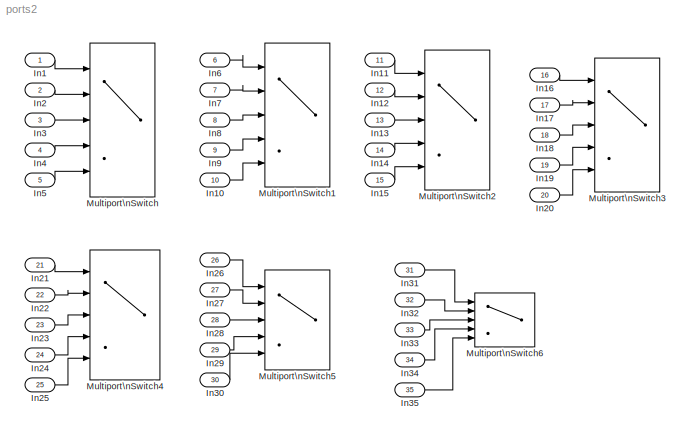
MODEL ports2
KIND model
BLOCK [Inport] In1
  IconDisplay = Port number
  SID = 2
BLOCK [Inport] In10
  IconDisplay = Port number
  Port = 10
  SID = 44
BLOCK [Inport] In11
  IconDisplay = Port number
  Port = 11
  SID = 46
BLOCK [Inport] In12
  IconDisplay = Port number
  Port = 12
  SID = 47
BLOCK [Inport] In13
  IconDisplay = Port number
  Port = 13
  SID = 48
BLOCK [Inport] In14
  IconDisplay = Port number
  Port = 14
  SID = 49
BLOCK [Inport] In15
  IconDisplay = Port number
  Port = 15
  SID = 50
BLOCK [Inport] In16
  IconDisplay = Port number
  Port = 16
  SID = 52
BLOCK [Inport] In17
  IconDisplay = Port number
  Port = 17
  SID = 53
BLOCK [Inport] In18
  IconDisplay = Port number
  Port = 18
  SID = 54
BLOCK [Inport] In19
  IconDisplay = Port number
  Port = 19
  SID = 55
BLOCK [Inport] In2
  IconDisplay = Port number
  Port = 2
  SID = 3
BLOCK [Inport] In20
  IconDisplay = Port number
  Port = 20
  SID = 56
BLOCK [Inport] In21
  IconDisplay = Port number
  Port = 21
  SID = 58
BLOCK [Inport] In22
  IconDisplay = Port number
  Port = 22
  SID = 59
BLOCK [Inport] In23
  IconDisplay = Port number
  Port = 23
  SID = 60
BLOCK [Inport] In24
  IconDisplay = Port number
  Port = 24
  SID = 61
BLOCK [Inport] In25
  IconDisplay = Port number
  Port = 25
  SID = 62
BLOCK [Inport] In26
  IconDisplay = Port number
  Port = 26
  SID = 64
BLOCK [Inport] In27
  IconDisplay = Port number
  Port = 27
  SID = 65
BLOCK [Inport] In28
  IconDisplay = Port number
  Port = 28
  SID = 66
BLOCK [Inport] In29
  IconDisplay = Port number
  Port = 29
  SID = 67
BLOCK [Inport] In3
  IconDisplay = Port number
  Port = 3
  SID = 4
BLOCK [Inport] In30
  IconDisplay = Port number
  Port = 30
  SID = 68
BLOCK [Inport] In31
  IconDisplay = Port number
  Port = 31
  SID = 70
BLOCK [Inport] In32
  IconDisplay = Port number
  Port = 32
  SID = 71
BLOCK [Inport] In33
  IconDisplay = Port number
  Port = 33
  SID = 72
BLOCK [Inport] In34
  IconDisplay = Port number
  Port = 34
  SID = 73
BLOCK [Inport] In35
  IconDisplay = Port number
  Port = 35
  SID = 74
BLOCK [Inport] In4
  IconDisplay = Port number
  Port = 4
  SID = 5
BLOCK [Inport] In5
  IconDisplay = Port number
  Port = 5
  SID = 6
BLOCK [Inport] In6
  IconDisplay = Port number
  Port = 6
  SID = 40
BLOCK [Inport] In7
  IconDisplay = Port number
  Port = 7
  SID = 41
BLOCK [Inport] In8
  IconDisplay = Port number
  Port = 8
  SID = 42
BLOCK [Inport] In9
  IconDisplay = Port number
  Port = 9
  SID = 43
BLOCK [MultiPortSwitch] Multiport\nSwitch
  InputSameDT = off
  Inputs = 4
  Ports = [5, 1]
  SID = 1
  SaturateOnIntegerOverflow = off
BLOCK [MultiPortSwitch] Multiport\nSwitch1
  InputSameDT = off
  Inputs = 4
  Ports = [5, 1]
  SID = 45
  SaturateOnIntegerOverflow = off
BLOCK [MultiPortSwitch] Multiport\nSwitch2
  InputSameDT = off
  Inputs = 4
  Ports = [5, 1]
  SID = 51
  SaturateOnIntegerOverflow = off
BLOCK [MultiPortSwitch] Multiport\nSwitch3
  InputSameDT = off
  Inputs = 4
  Ports = [5, 1]
  SID = 57
  SaturateOnIntegerOverflow = off
BLOCK [MultiPortSwitch] Multiport\nSwitch4
  InputSameDT = off
  Inputs = 4
  Ports = [5, 1]
  SID = 63
  SaturateOnIntegerOverflow = off
BLOCK [MultiPortSwitch] Multiport\nSwitch5
  InputSameDT = off
  Inputs = 4
  Ports = [5, 1]
  SID = 69
  SaturateOnIntegerOverflow = off
BLOCK [MultiPortSwitch] Multiport\nSwitch6
  InputSameDT = off
  Inputs = 4
  Ports = [5, 1]
  SID = 75
  SaturateOnIntegerOverflow = off
LINE In10:1 -> Multiport\nSwitch1:5
LINE In11:1 -> Multiport\nSwitch2:1
LINE In12:1 -> Multiport\nSwitch2:2
LINE In13:1 -> Multiport\nSwitch2:3
LINE In14:1 -> Multiport\nSwitch2:4
LINE In15:1 -> Multiport\nSwitch2:5
LINE In16:1 -> Multiport\nSwitch3:1
LINE In17:1 -> Multiport\nSwitch3:2
LINE In18:1 -> Multiport\nSwitch3:3
LINE In19:1 -> Multiport\nSwitch3:4
LINE In1:1 -> Multiport\nSwitch:1
LINE In20:1 -> Multiport\nSwitch3:5
LINE In21:1 -> Multiport\nSwitch4:1
LINE In22:1 -> Multiport\nSwitch4:2
LINE In23:1 -> Multiport\nSwitch4:3
LINE In24:1 -> Multiport\nSwitch4:4
LINE In25:1 -> Multiport\nSwitch4:5
LINE In26:1 -> Multiport\nSwitch5:1
LINE In27:1 -> Multiport\nSwitch5:2
LINE In28:1 -> Multiport\nSwitch5:3
LINE In29:1 -> Multiport\nSwitch5:4
LINE In2:1 -> Multiport\nSwitch:2
LINE In30:1 -> Multiport\nSwitch5:5
LINE In31:1 -> Multiport\nSwitch6:1
LINE In32:1 -> Multiport\nSwitch6:2
LINE In33:1 -> Multiport\nSwitch6:3
LINE In34:1 -> Multiport\nSwitch6:4
LINE In35:1 -> Multiport\nSwitch6:5
LINE In3:1 -> Multiport\nSwitch:3
LINE In4:1 -> Multiport\nSwitch:4
LINE In5:1 -> Multiport\nSwitch:5
LINE In6:1 -> Multiport\nSwitch1:1
LINE In7:1 -> Multiport\nSwitch1:2
LINE In8:1 -> Multiport\nSwitch1:3
LINE In9:1 -> Multiport\nSwitch1:4
